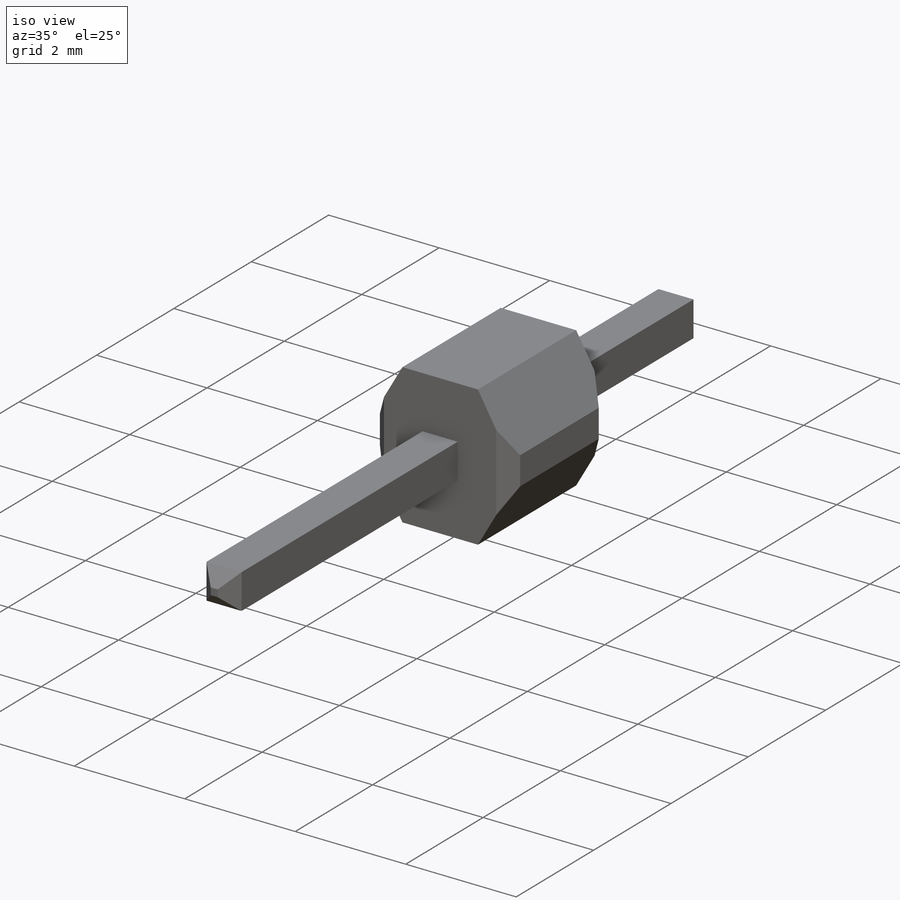
[diagram: iso view]
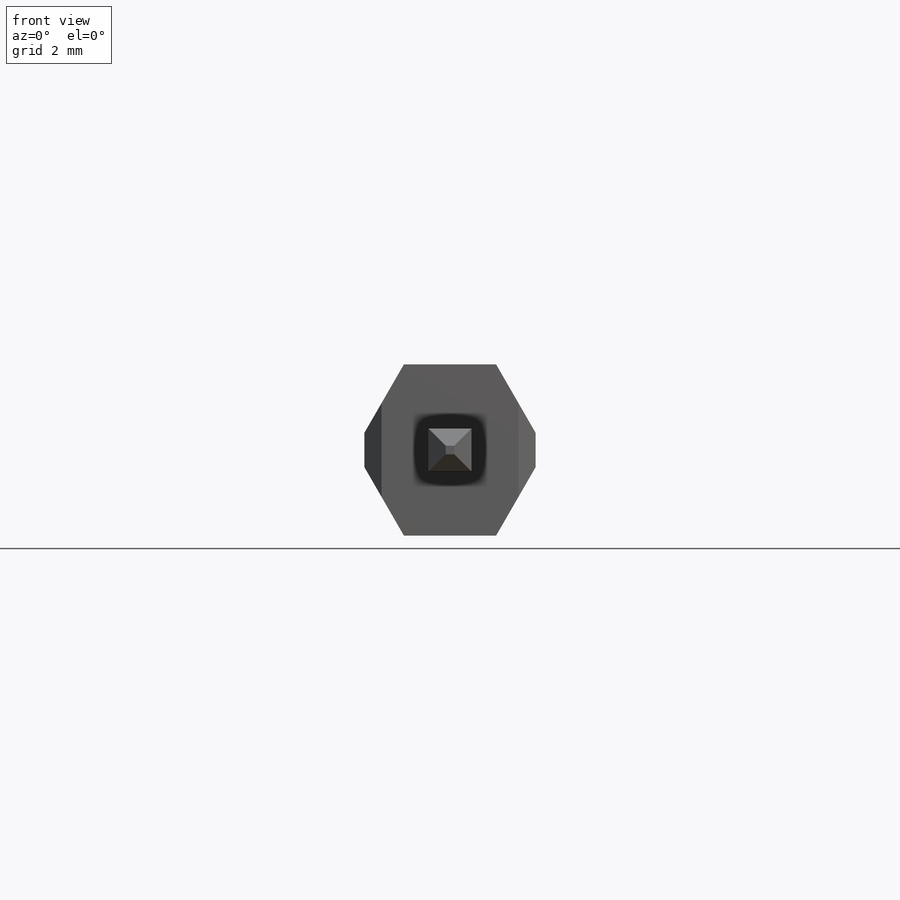
[diagram: front view]
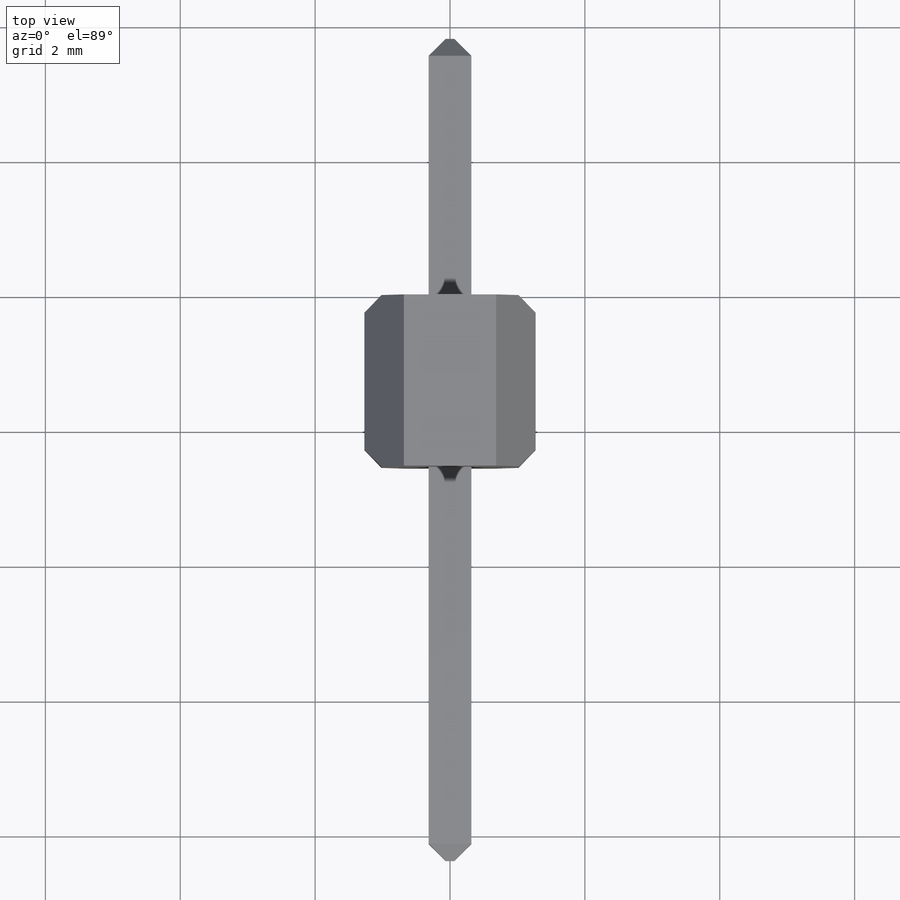
[diagram: top view]
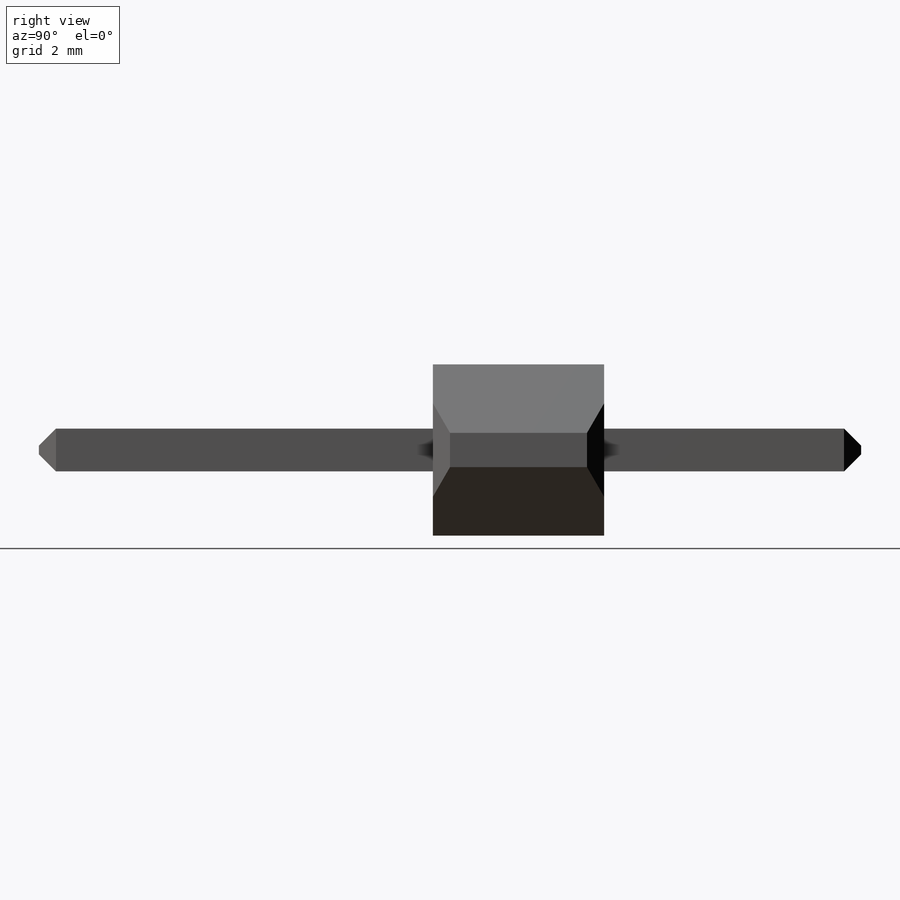
[diagram: right view]
SOLIDWORKS PART (.sldprt)
format: sldprt  version: not decoded by parser v0  size: 285,696 bytes
history: native  units: mm
features: chamfer x6, plane x3, sketch x2, extrude x2, material x1 (+8 scaffold rows collapsed)
feature tree (22):
  scaffold x8  (default folders/planes/origin — collapsed)
  material  "Material <not specified>"
  plane  "x/y"
  plane  "x/z"
  plane  "y/z"
  sketch  "Sketch1"  dims[D1=2.54mm D2=2.54mm D3=1.27mm D4=1.27mm]
  extrude  "Base-Extrude"  Depth=2.54mm
  chamfer  "Chamfer1"  Distance=0.254mm Angle=45deg
  chamfer  "Chamfer4"  Distance=0.254mm Angle=45deg
  chamfer  "Chamfer2"  Distance=1.016mm Angle=30deg
  chamfer  "Chamfer3"  Distance=1.016mm Angle=30deg
  sketch  "Sketch2"  dims[D1=0.635mm D2=0.635mm D3=0.3175mm D4=0.3175mm]
  extrude  "Boss-Extrude1"  Depth=3.81mm
  chamfer  "Chamfer5"  Distance=0.254mm Angle=45deg
  chamfer  "Chamfer6"  Distance=0.254mm Angle=45deg
decode coverage: 10 of 10 modeling features carry decoded parameters
note: suppression state not decoded; provenance and decode notes live in map.json
